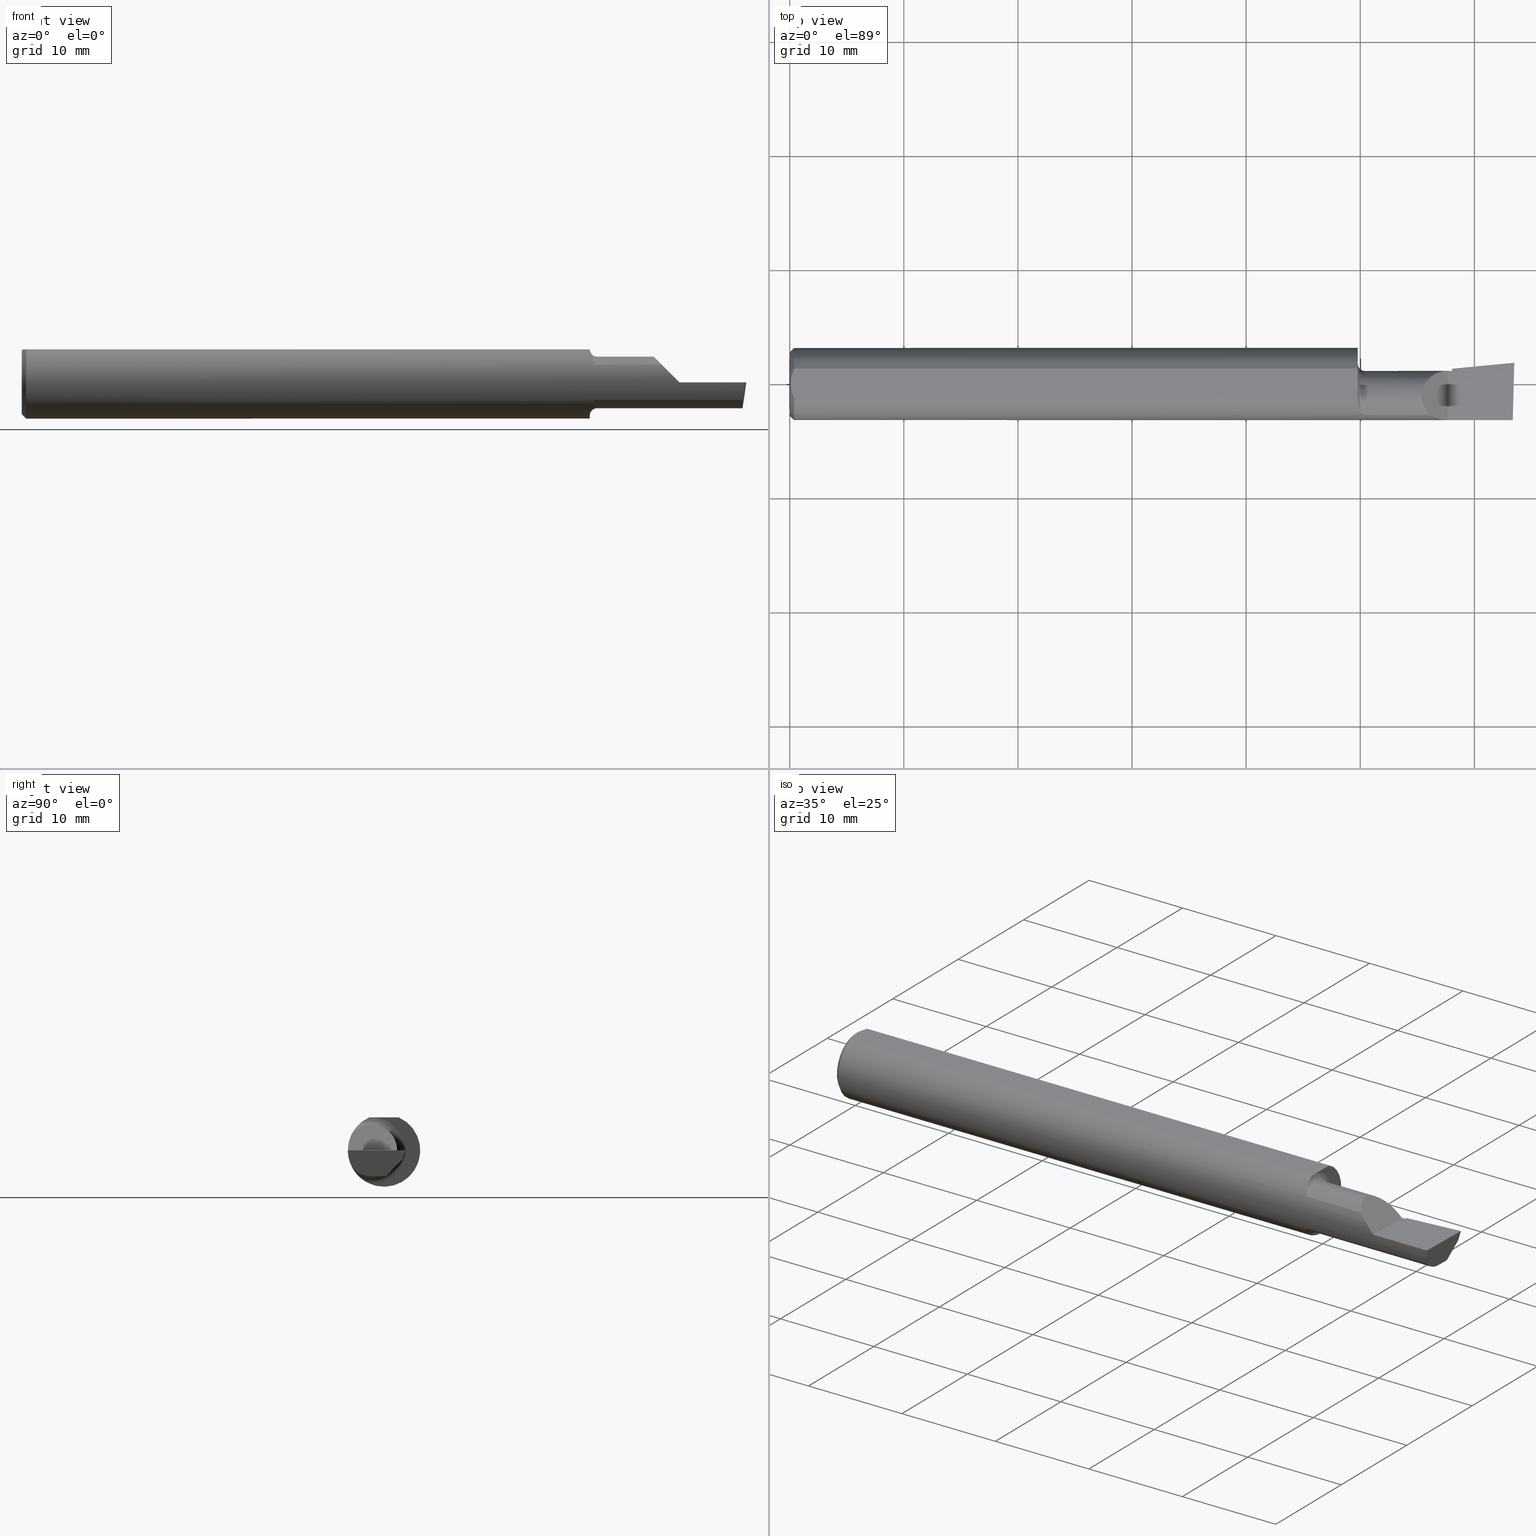
[diagram: canonical four-view strip — front | top / right | iso, engineering-drawing reading convention]
A machine part, canonical four-view strip (front | top / right | iso — engineering-drawing reading convention). The complete STEP part file that produces these views, byte-faithful:
ISO-10303-21;
HEADER;
FILE_DESCRIPTION (( 'STEP AP214' ),
    '1' );
FILE_NAME ('B200500.STEP',
    '2019-07-25T18:20:52',
    ( '' ),
    ( '' ),
    'SwSTEP 2.0',
    'SolidWorks 2018',
    '' );
FILE_SCHEMA (( 'AUTOMOTIVE_DESIGN' ));
ENDSEC;

DATA;
#1 = CARTESIAN_POINT ( 'NONE',  ( 2.289131370391418674, -0.006166688875842945075, -0.08914999999999999314 ) ) ;
#2 = ORIENTED_EDGE ( 'NONE', *, *, #433, .F. ) ;
#3 = CARTESIAN_POINT ( 'NONE',  ( 2.487716879513912627, -0.1088159090909091575, -0.06120964326573871683 ) ) ;
#4 = EDGE_LOOP ( 'NONE', ( #155, #424, #476, #447, #191 ) ) ;
#5 = EDGE_CURVE ( 'NONE', #214, #277, #220, .T. ) ;
#6 = CARTESIAN_POINT ( 'NONE',  ( 1.985000000000000098, -0.04399999999999999745, 0.08914999999999995151 ) ) ;
#7 = CARTESIAN_POINT ( 'NONE',  ( 1.960000097795984608, -0.05124158467435454417, 0.1138500000000000345 ) ) ;
#8 = EDGE_CURVE ( 'NONE', #484, #634, #394, .T. ) ;
#9 = DIRECTION ( 'NONE',  ( 0.0000000000000000000, 0.0000000000000000000, 1.000000000000000000 ) ) ;
#10 = ORIENTED_EDGE ( 'NONE', *, *, #649, .F. ) ;
#11 = ORIENTED_EDGE ( 'NONE', *, *, #211, .T. ) ;
#12 = FACE_OUTER_BOUND ( 'NONE', #114, .T. ) ;
#13 = CARTESIAN_POINT ( 'NONE',  ( 1.985000000000000098, -0.04399999999999999745, 0.0000000000000000000 ) ) ;
#14 = ADVANCED_FACE ( 'NONE', ( #250 ), #196, .T. ) ;
#15 = EDGE_CURVE ( 'NONE', #197, #441, #167, .T. ) ;
#16 = DIRECTION ( 'NONE',  ( 0.0000000000000000000, 0.0000000000000000000, 1.000000000000000000 ) ) ;
#17 = ADVANCED_FACE ( 'NONE', ( #293 ), #566, .F. ) ;
#18 = ORIENTED_EDGE ( 'NONE', *, *, #462, .T. ) ;
#19 = CARTESIAN_POINT ( 'NONE',  ( 2.494815187529301426, -0.1248500000000000304, -6.615452481474715797E-17 ) ) ;
#20 = ORIENTED_EDGE ( 'NONE', *, *, #317, .F. ) ;
#21 = CIRCLE ( 'NONE', #371, 0.1141499999999999598 ) ;
#22 = EDGE_CURVE ( 'NONE', #323, #678, #215, .T. ) ;
#23 = CARTESIAN_POINT ( 'NONE',  ( 1.960001800064804511, -0.04399999999999999745, 0.1138500000000000345 ) ) ;
#24 = EDGE_CURVE ( 'NONE', #72, #584, #338, .T. ) ;
#25 = CARTESIAN_POINT ( 'NONE',  ( 2.270000000000000018, -0.2500000000000000555, 2.816687638038912303E-17 ) ) ;
#26 = AXIS2_PLACEMENT_3D ( 'NONE', #186, #459, #55 ) ;
#27 = VECTOR ( 'NONE', #718, 39.37007874015748143 ) ;
#28 = ORIENTED_EDGE ( 'NONE', *, *, #473, .T. ) ;
#29 = CIRCLE ( 'NONE', #251, 0.09644785463752904298 ) ;
#30 = DIRECTION ( 'NONE',  ( 0.0000000000000000000, 0.0000000000000000000, -1.000000000000000000 ) ) ;
#31 = LINE ( 'NONE', #41, #320 ) ;
#32 = ORIENTED_EDGE ( 'NONE', *, *, #76, .F. ) ;
#33 = ORIENTED_EDGE ( 'NONE', *, *, #8, .T. ) ;
#34 = CARTESIAN_POINT ( 'NONE',  ( 2.289728664559030236, -0.01236982598015578041, -0.08914999999999999314 ) ) ;
#35 = LINE ( 'NONE', #77, #688 ) ;
#36 = LINE ( 'NONE', #618, #182 ) ;
#37 = B_SPLINE_CURVE_WITH_KNOTS ( 'NONE', 3,
 ( #599, #324, #480, #531, #265, #326, #372, #655, #144, #647, #149, #436 ),
 .UNSPECIFIED., .F., .F.,
 ( 4, 2, 2, 2, 2, 4 ),
 ( 1.958506483897801753E-07, 0.0001392669359846166399, 0.0002783380213208434643, 0.0005564801919932976012, 0.001112764533338206092, 0.002225333216028027410 ),
 .UNSPECIFIED. ) ;
#38 = CARTESIAN_POINT ( 'NONE',  ( 0.0000000000000000000, -0.04399999999999999745, 0.08914999999999997926 ) ) ;
#39 = AXIS2_PLACEMENT_3D ( 'NONE', #452, #52, #49 ) ;
#40 = CARTESIAN_POINT ( 'NONE',  ( 0.0000000000000000000, -0.04399999999999999745, 0.0000000000000000000 ) ) ;
#41 = CARTESIAN_POINT ( 'NONE',  ( 2.491543817870046862, -0.2497785670779702760, -6.474963748791635999E-17 ) ) ;
#42 = CARTESIAN_POINT ( 'NONE',  ( 0.01499999999999999424, 0.0000000000000000000, 0.0000000000000000000 ) ) ;
#43 = B_SPLINE_CURVE_WITH_KNOTS ( 'NONE', 3,
 ( #357, #628, #354, #571, #7 ),
 .UNSPECIFIED., .F., .F.,
 ( 4, 1, 4 ),
 ( 0.001183372309461725802, 0.001275293521162664499, 0.001367214732863603413 ),
 .UNSPECIFIED. ) ;
#44 = LINE ( 'NONE', #216, #470 ) ;
#45 = CARTESIAN_POINT ( 'NONE',  ( 2.285000000000000142, -0.007196927245378875737, -0.08914999999999999314 ) ) ;
#46 = SURFACE_SIDE_STYLE ('',( #256 ) ) ;
#47 = CYLINDRICAL_SURFACE ( 'NONE', #397, 0.08914999999999997926 ) ;
#48 = CARTESIAN_POINT ( 'NONE',  ( 2.487308770579542472, 0.006654974371325365554, -0.08914999999999999314 ) ) ;
#49 = DIRECTION ( 'NONE',  ( 0.0000000000000000000, 0.0000000000000000000, 1.000000000000000000 ) ) ;
#50 = B_SPLINE_CURVE_WITH_KNOTS ( 'NONE', 3,
 ( #122, #233, #346, #411, #131, #518, #524, #419, #198, #636, #695, #575, #247, #139 ),
 .UNSPECIFIED., .F., .F.,
 ( 4, 2, 2, 2, 2, 2, 4 ),
 ( 4.804672186336111182E-07, 0.0005473133578656328617, 0.001094146248512631965, 0.001640979139159630959, 0.001914395584483130890, 0.002051103807144887253, 0.002187812029806642748 ),
 .UNSPECIFIED. ) ;
#51 = DIRECTION ( 'NONE',  ( 0.0000000000000000000, 0.0000000000000000000, -1.000000000000000000 ) ) ;
#52 = DIRECTION ( 'NONE',  ( -1.000000000000000000, -0.0000000000000000000, -0.0000000000000000000 ) ) ;
#53 = EDGE_CURVE ( 'NONE', #387, #214, #674, .T. ) ;
#54 = CYLINDRICAL_SURFACE ( 'NONE', #143, 0.1248500000000000026 ) ;
#55 = DIRECTION ( 'NONE',  ( 0.0000000000000000000, 0.0000000000000000000, -1.000000000000000000 ) ) ;
#56 = ORIENTED_EDGE ( 'NONE', *, *, #445, .T. ) ;
#57 = DIRECTION ( 'NONE',  ( 0.1219104985252882217, 0.0000000000000000000, 0.9925410975618670362 ) ) ;
#58 = CIRCLE ( 'NONE', #662, 0.1098499999999996424 ) ;
#59 = CARTESIAN_POINT ( 'NONE',  ( 2.284439022446592915, 0.04256520776931357886, -0.03200000000000000067 ) ) ;
#60 = CARTESIAN_POINT ( 'NONE',  ( 2.485982323393565174, -0.04399999999999999745, -0.08914999999999999314 ) ) ;
#61 = AXIS2_PLACEMENT_3D ( 'NONE', #490, #661, #275 ) ;
#62 = DIRECTION ( 'NONE',  ( -0.0000000000000000000, 1.000000000000000000, 1.224646799147353207E-16 ) ) ;
#63 = CARTESIAN_POINT ( 'NONE',  ( 0.0000000000000000000, 0.0000000000000000000, 0.0000000000000000000 ) ) ;
#64 = VERTEX_POINT ( 'NONE', #597 ) ;
#65 = ORIENTED_EDGE ( 'NONE', *, *, #528, .T. ) ;
#66 = ORIENTED_EDGE ( 'NONE', *, *, #368, .F. ) ;
#67 = PRESENTATION_LAYER_ASSIGNMENT (  '', '', ( #319 ) ) ;
#68 = VECTOR ( 'NONE', #613, 39.37007874015748854 ) ;
#69 = CARTESIAN_POINT ( 'NONE',  ( 2.285000000000000142, 0.05244785463752904553, 0.0000000000000000000 ) ) ;
#70 = DIRECTION ( 'NONE',  ( 1.000000000000000000, 0.0000000000000000000, 0.0000000000000000000 ) ) ;
#71 = ORIENTED_EDGE ( 'NONE', *, *, #344, .F. ) ;
#72 = VERTEX_POINT ( 'NONE', #19 ) ;
#73 = EDGE_CURVE ( 'NONE', #686, #331, #595, .T. ) ;
#74 = LINE ( 'NONE', #118, #170 ) ;
#75 = VECTOR ( 'NONE', #109, 39.37007874015748143 ) ;
#76 = EDGE_CURVE ( 'NONE', #136, #64, #177, .T. ) ;
#77 = CARTESIAN_POINT ( 'NONE',  ( 2.485991928762870451, -0.04363318574524892302, -0.08914999999999999314 ) ) ;
#78 = AXIS2_PLACEMENT_3D ( 'NONE', #303, #366, #9 ) ;
#79 =( BOUNDED_CURVE ( )  B_SPLINE_CURVE ( 3, ( #165, #545, #449, #669 ),
 .UNSPECIFIED., .F., .T. ) 
 B_SPLINE_CURVE_WITH_KNOTS ( ( 4, 4 ),
 ( 4.712388980384689674, 5.224783288303640916 ),
 .UNSPECIFIED. ) 
 CURVE ( )  GEOMETRIC_REPRESENTATION_ITEM ( )  RATIONAL_B_SPLINE_CURVE ( ( 1.000000000000000000, 0.9782404171696013062, 0.9782404171696013062, 1.000000000000000000 ) ) 
 REPRESENTATION_ITEM ( '' )  );
#80 = DIRECTION ( 'NONE',  ( -0.7071067811865507924, 0.0000000000000000000, 0.7071067811865443531 ) ) ;
#81 = EDGE_LOOP ( 'NONE', ( #622, #360, #725, #687, #498, #659 ) ) ;
#82 = FILL_AREA_STYLE_COLOUR ( '', #416 ) ;
#83 = EDGE_CURVE ( 'NONE', #456, #152, #37, .T. ) ;
#84 = ORIENTED_EDGE ( 'NONE', *, *, #137, .F. ) ;
#85 = CARTESIAN_POINT ( 'NONE',  ( 2.284439022446592915, 0.04256520776931357886, -0.03200000000000000067 ) ) ;
#86 = LINE ( 'NONE', #336, #95 ) ;
#87 = AXIS2_PLACEMENT_3D ( 'NONE', #201, #585, #259 ) ;
#88 = ADVANCED_FACE ( 'NONE', ( #347 ), #657, .F. ) ;
#89 =( NAMED_UNIT ( * ) PLANE_ANGLE_UNIT ( ) SI_UNIT ( $, .RADIAN. ) );
#90 = ADVANCED_FACE ( 'NONE', ( #140 ), #318, .F. ) ;
#91 = LINE ( 'NONE', #38, #205 ) ;
#92 = ORIENTED_EDGE ( 'NONE', *, *, #544, .T. ) ;
#93 = EDGE_LOOP ( 'NONE', ( #475, #223, #598, #533 ) ) ;
#94 = EDGE_CURVE ( 'NONE', #709, #505, #712, .T. ) ;
#95 = VECTOR ( 'NONE', #399, 39.37007874015748143 ) ;
#96 = PLANE ( 'NONE',  #61 ) ;
#97 = CARTESIAN_POINT ( 'NONE',  ( 2.489748215127380870, -0.1193864177600010845, -0.04241784104289512969 ) ) ;
#98 = CARTESIAN_POINT ( 'NONE',  ( 0.0000000000000000000, 1.437123018799416669E-17, 0.1098499999999996424 ) ) ;
#99 = AXIS2_PLACEMENT_3D ( 'NONE', #292, #610, #179 ) ;
#100 = B_SPLINE_CURVE_WITH_KNOTS ( 'NONE', 3,
 ( #460, #504, #239, #111, #283, #337 ),
 .UNSPECIFIED., .F., .F.,
 ( 4, 2, 4 ),
 ( 0.002303251115488625690, 0.002969128157203607035, 0.003635005198918588379 ),
 .UNSPECIFIED. ) ;
#101 = DIRECTION ( 'NONE',  ( 0.0000000000000000000, 0.0000000000000000000, 1.000000000000000000 ) ) ;
#102 = ORIENTED_EDGE ( 'NONE', *, *, #462, .F. ) ;
#103 = CARTESIAN_POINT ( 'NONE',  ( 2.500000000000000000, -0.04399999999999999745, -0.08914999999999999314 ) ) ;
#104 = ORIENTED_EDGE ( 'NONE', *, *, #148, .F. ) ;
#105 = ORIENTED_EDGE ( 'NONE', *, *, #317, .T. ) ;
#106 = FACE_OUTER_BOUND ( 'NONE', #81, .T. ) ;
#107 = EDGE_CURVE ( 'NONE', #277, #349, #91, .T. ) ;
#108 =( LENGTH_UNIT ( ) NAMED_UNIT ( * ) SI_UNIT ( $, .METRE. ) );
#109 = DIRECTION ( 'NONE',  ( 0.7071067811865390240, 8.659560562355036396E-17, 0.7071067811865560104 ) ) ;
#110 = MECHANICAL_DESIGN_GEOMETRIC_PRESENTATION_REPRESENTATION (  '', ( #319 ), #190 ) ;
#111 = CARTESIAN_POINT ( 'NONE',  ( 0.008876515511621064711, 0.03469031959364226453, 0.1138500000000000206 ) ) ;
#112 = FACE_OUTER_BOUND ( 'NONE', #558, .T. ) ;
#113 = CARTESIAN_POINT ( 'NONE',  ( 2.285000000000000142, 0.03673923312418244519, -0.05275760512666258228 ) ) ;
#114 = EDGE_LOOP ( 'NONE', ( #660, #134, #225, #65, #84, #32, #28 ) ) ;
#115 = LINE ( 'NONE', #431, #458 ) ;
#116 = CARTESIAN_POINT ( 'NONE',  ( 1.960000097795984608, -0.05124158467435454417, 0.1138500000000000345 ) ) ;
#117 = EDGE_CURVE ( 'NONE', #667, #456, #213, .T. ) ;
#118 = CARTESIAN_POINT ( 'NONE',  ( 0.0000000000000000000, -0.05124158467494919350, 0.1138500000000000345 ) ) ;
#119 = CARTESIAN_POINT ( 'NONE',  ( 2.285000000000000142, -0.04399999999999999745, 0.0000000000000000000 ) ) ;
#120 = CARTESIAN_POINT ( 'NONE',  ( 2.285000000000000142, 0.04261922376399131240, -0.03200000000000000761 ) ) ;
#121 = VECTOR ( 'NONE', #343, 39.37007874015748143 ) ;
#122 = CARTESIAN_POINT ( 'NONE',  ( 1.960000097795984608, -0.05124158467435454417, 0.1138500000000000345 ) ) ;
#123 = ORIENTED_EDGE ( 'NONE', *, *, #696, .F. ) ;
#124 = VERTEX_POINT ( 'NONE', #444 ) ;
#125 = DIRECTION ( 'NONE',  ( 0.9953961983671801850, 0.09584575252020945124, -3.364218507212918783E-14 ) ) ;
#126 = ORIENTED_EDGE ( 'NONE', *, *, #433, .T. ) ;
#127 = CYLINDRICAL_SURFACE ( 'NONE', #546, 0.08914999999999997926 ) ;
#128 = CARTESIAN_POINT ( 'NONE',  ( 2.270000000000000018, -0.1248500000000000165, 2.816687638038912303E-17 ) ) ;
#129 = LINE ( 'NONE', #245, #246 ) ;
#130 = CARTESIAN_POINT ( 'NONE',  ( 2.485942244485980002, -0.09173194857106677091, -0.07930013314426070936 ) ) ;
#131 = CARTESIAN_POINT ( 'NONE',  ( 1.963123628621459504, -0.08156933505673470697, 0.09478144068379323883 ) ) ;
#132 = VERTEX_POINT ( 'NONE', #548 ) ;
#133 = EDGE_CURVE ( 'NONE', #601, #709, #189, .T. ) ;
#134 = ORIENTED_EDGE ( 'NONE', *, *, #560, .F. ) ;
#135 = DIRECTION ( 'NONE',  ( -0.0000000000000000000, 0.0000000000000000000, 1.000000000000000000 ) ) ;
#136 = VERTEX_POINT ( 'NONE', #664 ) ;
#137 = EDGE_CURVE ( 'NONE', #64, #244, #269, .T. ) ;
#138 = CARTESIAN_POINT ( 'NONE',  ( 0.01499999999999999424, 0.0000000000000000000, 0.0000000000000000000 ) ) ;
#139 = CARTESIAN_POINT ( 'NONE',  ( 1.985000000000000098, -0.1088159090909094073, 0.06120964326573843234 ) ) ;
#140 = FACE_OUTER_BOUND ( 'NONE', #4, .T. ) ;
#141 = ORIENTED_EDGE ( 'NONE', *, *, #94, .F. ) ;
#142 = ORIENTED_EDGE ( 'NONE', *, *, #107, .F. ) ;
#143 = AXIS2_PLACEMENT_3D ( 'NONE', #332, #602, #101 ) ;
#144 = CARTESIAN_POINT ( 'NONE',  ( 1.966341859756229216, -0.09164079654472229164, -0.08508064213884949933 ) ) ;
#145 = EDGE_LOOP ( 'NONE', ( #295, #507, #322, #142, #693, #522 ) ) ;
#146 = APPLICATION_CONTEXT ( 'automotive_design' ) ;
#147 = LINE ( 'NONE', #401, #75 ) ;
#148 = EDGE_CURVE ( 'NONE', #611, #72, #379, .T. ) ;
#149 = CARTESIAN_POINT ( 'NONE',  ( 1.959999999999999520, -0.06435233443826804400, -0.1079743783864397788 ) ) ;
#150 = ADVANCED_FACE ( 'NONE', ( #359 ), #711, .F. ) ;
#151 = MECHANICAL_DESIGN_GEOMETRIC_PRESENTATION_REPRESENTATION (  '', ( #178 ), #356 ) ;
#152 = VERTEX_POINT ( 'NONE', #157 ) ;
#153 = CARTESIAN_POINT ( 'NONE',  ( 1.985000000000000098, -0.04399999999999997663, -0.08914999999999995151 ) ) ;
#154 = ORIENTED_EDGE ( 'NONE', *, *, #630, .T. ) ;
#155 = ORIENTED_EDGE ( 'NONE', *, *, #520, .T. ) ;
#156 = ORIENTED_EDGE ( 'NONE', *, *, #171, .F. ) ;
#157 = CARTESIAN_POINT ( 'NONE',  ( 1.959999999999999964, -0.05106022727272737510, -0.1139314517192571846 ) ) ;
#158 = ORIENTED_EDGE ( 'NONE', *, *, #188, .T. ) ;
#159 = EDGE_CURVE ( 'NONE', #442, #289, #44, .T. ) ;
#160 = CARTESIAN_POINT ( 'NONE',  ( 2.287426487320435076, 0.01153919879152676478, -0.08145767591332998825 ) ) ;
#161 = LENGTH_MEASURE_WITH_UNIT ( LENGTH_MEASURE( 0.02539999999999999897 ), #108 );
#162 = DIRECTION ( 'NONE',  ( -0.1240019227989403172, -0.3022330132596650620, -0.9451342385281302771 ) ) ;
#163 = DIMENSIONAL_EXPONENTS ( 1.000000000000000000, 0.0000000000000000000, 0.0000000000000000000, 0.0000000000000000000, 0.0000000000000000000, 0.0000000000000000000, 0.0000000000000000000 ) ;
#164 = CARTESIAN_POINT ( 'NONE',  ( 0.01499999999999999424, 0.0000000000000000000, -0.1248500000000000026 ) ) ;
#165 = CARTESIAN_POINT ( 'NONE',  ( 2.270000000000000018, -0.1248500000000000165, 2.816687638038912303E-17 ) ) ;
#166 = PLANE ( 'NONE',  #627 ) ;
#167 = LINE ( 'NONE', #639, #454 ) ;
#168 = SURFACE_STYLE_USAGE ( .BOTH. , #46 ) ;
#169 = EDGE_LOOP ( 'NONE', ( #367, #497, #556, #430, #635 ) ) ;
#170 = VECTOR ( 'NONE', #469, 39.37007874015748143 ) ;
#171 = EDGE_CURVE ( 'NONE', #584, #214, #79, .T. ) ;
#172 = CARTESIAN_POINT ( 'NONE',  ( 2.284999999999997478, 0.03673923312418989062, -0.03806087642518373587 ) ) ;
#173 = DIRECTION ( 'NONE',  ( 0.0000000000000000000, 0.0000000000000000000, 1.000000000000000000 ) ) ;
#174 = AXIS2_PLACEMENT_3D ( 'NONE', #565, #358, #467 ) ;
#175 = DIRECTION ( 'NONE',  ( -1.000000000000000000, -0.0000000000000000000, -0.0000000000000000000 ) ) ;
#176 = EDGE_CURVE ( 'NONE', #72, #709, #31, .T. ) ;
#177 = CIRCLE ( 'NONE', #645, 0.08914999999999999314 ) ;
#178 = STYLED_ITEM ( 'NONE', ( #681 ), #388 ) ;
#179 = DIRECTION ( 'NONE',  ( 0.0000000000000000000, 0.0000000000000000000, 1.000000000000000000 ) ) ;
#180 = ORIENTED_EDGE ( 'NONE', *, *, #528, .F. ) ;
#181 = ORIENTED_EDGE ( 'NONE', *, *, #696, .T. ) ;
#182 = VECTOR ( 'NONE', #355, 39.37007874015748854 ) ;
#183 = FILL_AREA_STYLE ('',( #466 ) ) ;
#184 = VECTOR ( 'NONE', #278, 39.37007874015748854 ) ;
#185 = AXIS2_PLACEMENT_3D ( 'NONE', #559, #175, #173 ) ;
#186 = CARTESIAN_POINT ( 'NONE',  ( 1.959999999999999964, 0.07014999999999996239, 0.0000000000000000000 ) ) ;
#187 = PLANE ( 'NONE',  #228 ) ;
#188 = EDGE_CURVE ( 'NONE', #152, #234, #461, .T. ) ;
#189 = LINE ( 'NONE', #710, #642 ) ;
#190 =( GEOMETRIC_REPRESENTATION_CONTEXT ( 3 ) GLOBAL_UNCERTAINTY_ASSIGNED_CONTEXT ( ( #539 ) ) GLOBAL_UNIT_ASSIGNED_CONTEXT ( ( #315, #89, #706 ) ) REPRESENTATION_CONTEXT ( 'NONE', 'WORKASPACE' ) );
#191 = ORIENTED_EDGE ( 'NONE', *, *, #560, .T. ) ;
#192 = EDGE_LOOP ( 'NONE', ( #408, #542, #479, #385 ) ) ;
#193 = CARTESIAN_POINT ( 'NONE',  ( 0.01168016970778672399, -0.04315282601121772643, 0.1138500000000000206 ) ) ;
#194 = VECTOR ( 'NONE', #407, 39.37007874015748143 ) ;
#195 = ADVANCED_FACE ( 'NONE', ( #304 ), #96, .F. ) ;
#196 = CONICAL_SURFACE ( 'NONE', #273, 0.1248500000000000026, 0.7853981633974602694 ) ;
#197 = VERTEX_POINT ( 'NONE', #34 ) ;
#198 = CARTESIAN_POINT ( 'NONE',  ( 1.974298474000476977, -0.1041086701287579075, 0.06897617952042765788 ) ) ;
#199 = ADVANCED_FACE ( 'NONE', ( #439 ), #54, .T. ) ;
#200 = CIRCLE ( 'NONE', #333, 0.1248500000000000026 ) ;
#201 = CARTESIAN_POINT ( 'NONE',  ( 0.0000000000000000000, 0.0000000000000000000, 0.0000000000000000000 ) ) ;
#202 = PRODUCT_CONTEXT ( 'NONE', #146, 'mechanical' ) ;
#203 = AXIS2_PLACEMENT_3D ( 'NONE', #69, #472, #135 ) ;
#204 = CARTESIAN_POINT ( 'NONE',  ( 1.960001800064805177, -0.04262160478489881305, 0.1138500000000000761 ) ) ;
#205 = VECTOR ( 'NONE', #221, 39.37007874015748143 ) ;
#206 = ORIENTED_EDGE ( 'NONE', *, *, #677, .F. ) ;
#207 = DIRECTION ( 'NONE',  ( 0.0000000000000000000, -0.6963153109074923242, -0.7177360153954949196 ) ) ;
#208 = ORIENTED_EDGE ( 'NONE', *, *, #713, .F. ) ;
#209 = FACE_OUTER_BOUND ( 'NONE', #93, .T. ) ;
#210 = CARTESIAN_POINT ( 'NONE',  ( 1.960001800064804511, -0.04399999999999999745, 0.1138500000000000345 ) ) ;
#211 = EDGE_CURVE ( 'NONE', #323, #312, #620, .T. ) ;
#212 = DIRECTION ( 'NONE',  ( 0.0000000000000000000, 0.0000000000000000000, 1.000000000000000000 ) ) ;
#213 = CIRCLE ( 'NONE', #236, 0.08914999999999995151 ) ;
#214 = VERTEX_POINT ( 'NONE', #680 ) ;
#215 = B_SPLINE_CURVE_WITH_KNOTS ( 'NONE', 3,
 ( #587, #705, #482, #204, #210 ),
 .UNSPECIFIED., .F., .F.,
 ( 4, 1, 4 ),
 ( 0.0009734136918183535934, 0.001078393000640039644, 0.001183372309461725802 ),
 .UNSPECIFIED. ) ;
#216 = CARTESIAN_POINT ( 'NONE',  ( 2.285000000000000142, 0.03673923312420349779, 5.513779570648136315E-15 ) ) ;
#217 = PRESENTATION_LAYER_ASSIGNMENT (  '', '', ( #178 ) ) ;
#218 = PRODUCT_DEFINITION_SHAPE ( 'NONE', 'NONE',  #633 ) ;
#219 = AXIS2_PLACEMENT_3D ( 'NONE', #231, #552, #619 ) ;
#220 =( BOUNDED_CURVE ( )  B_SPLINE_CURVE ( 3, ( #311, #253, #370, #581 ),
 .UNSPECIFIED., .F., .T. ) 
 B_SPLINE_CURVE_WITH_KNOTS ( ( 4, 4 ),
 ( 5.469179596148854294, 6.283185307179586232 ),
 .UNSPECIFIED. ) 
 CURVE ( )  GEOMETRIC_REPRESENTATION_ITEM ( )  RATIONAL_B_SPLINE_CURVE ( ( 1.000000000000000000, 0.9455409277260484746, 0.9455409277260484746, 1.000000000000000000 ) ) 
 REPRESENTATION_ITEM ( '' )  );
#221 = DIRECTION ( 'NONE',  ( -1.000000000000000000, -0.0000000000000000000, -0.0000000000000000000 ) ) ;
#222 = CARTESIAN_POINT ( 'NONE',  ( 2.270000000000000018, -0.2500000000000000555, 2.816687638038912303E-17 ) ) ;
#223 = ORIENTED_EDGE ( 'NONE', *, *, #94, .T. ) ;
#224 = CARTESIAN_POINT ( 'NONE',  ( 2.495889740814595026, 0.06313196164346812633, -0.03132811651357114008 ) ) ;
#225 = ORIENTED_EDGE ( 'NONE', *, *, #159, .T. ) ;
#226 = EDGE_CURVE ( 'NONE', #634, #686, #100, .T. ) ;
#227 = LINE ( 'NONE', #222, #335 ) ;
#228 = AXIS2_PLACEMENT_3D ( 'NONE', #301, #125, #513 ) ;
#229 = DIRECTION ( 'NONE',  ( -0.0000000000000000000, 1.000000000000000000, -0.0000000000000000000 ) ) ;
#230 = CARTESIAN_POINT ( 'NONE',  ( 4.111069666048746882E-31, 0.04514999999999996100, 9.802154982235641300E-16 ) ) ;
#231 = CARTESIAN_POINT ( 'NONE',  ( 1.985000000000000098, -0.04399999999999999745, 0.1141499999999999598 ) ) ;
#232 = VECTOR ( 'NONE', #162, 39.37007874015748854 ) ;
#233 = CARTESIAN_POINT ( 'NONE',  ( 1.960007259122698242, -0.05787968516888347681, 0.1108623250897052548 ) ) ;
#234 = VERTEX_POINT ( 'NONE', #404 ) ;
#235 = CARTESIAN_POINT ( 'NONE',  ( 2.285000000000000142, -0.007196927245378875737, -0.08914999999999999314 ) ) ;
#236 = AXIS2_PLACEMENT_3D ( 'NONE', #607, #606, #280 ) ;
#237 = DIRECTION ( 'NONE',  ( 0.0000000000000000000, 0.0000000000000000000, 1.000000000000000000 ) ) ;
#238 = LINE ( 'NONE', #508, #352 ) ;
#239 = CARTESIAN_POINT ( 'NONE',  ( 0.005053359673950995161, 0.01761291720128071656, 0.1138500000000000484 ) ) ;
#240 = CARTESIAN_POINT ( 'NONE',  ( 0.01499999999999999424, 0.0000000000000000000, -0.1248500000000000026 ) ) ;
#241 = EDGE_CURVE ( 'NONE', #387, #349, #421, .T. ) ;
#242 = ORIENTED_EDGE ( 'NONE', *, *, #596, .F. ) ;
#243 = DIRECTION ( 'NONE',  ( -1.000000000000000000, -0.0000000000000000000, -0.0000000000000000000 ) ) ;
#244 = VERTEX_POINT ( 'NONE', #45 ) ;
#245 = CARTESIAN_POINT ( 'NONE',  ( 1.959999999999999964, 0.1748500000000000609, 0.1138500000000000068 ) ) ;
#246 = VECTOR ( 'NONE', #682, 39.37007874015748143 ) ;
#247 = CARTESIAN_POINT ( 'NONE',  ( 1.983151621368536288, -0.1088159090914120330, 0.06120964326484491791 ) ) ;
#248 = EDGE_CURVE ( 'NONE', #678, #349, #576, .T. ) ;
#249 = CARTESIAN_POINT ( 'NONE',  ( 0.01499999999999999424, 0.0000000000000000000, 0.0000000000000000000 ) ) ;
#250 = FACE_OUTER_BOUND ( 'NONE', #362, .T. ) ;
#251 = AXIS2_PLACEMENT_3D ( 'NONE', #119, #626, #679 ) ;
#252 = ORIENTED_EDGE ( 'NONE', *, *, #73, .T. ) ;
#253 = CARTESIAN_POINT ( 'NONE',  ( 2.190699866855738698, -0.09173194857106663214, 0.07930013314426077875 ) ) ;
#254 = CARTESIAN_POINT ( 'NONE',  ( 2.284439022446592915, 0.04256520776931357886, -0.03200000000000000067 ) ) ;
#255 = ADVANCED_BREP_SHAPE_REPRESENTATION ( 'B200500', ( #388, #87 ), #697 ) ;
#256 = SURFACE_STYLE_FILL_AREA ( #183 ) ;
#257 = AXIS2_PLACEMENT_3D ( 'NONE', #512, #573, #418 ) ;
#258 = CARTESIAN_POINT ( 'NONE',  ( 0.004000000000000278506, 1.406179932551309785E-17, 0.1138500000000000345 ) ) ;
#259 = DIRECTION ( 'NONE',  ( 1.000000000000000000, 0.0000000000000000000, 0.0000000000000000000 ) ) ;
#260 = CONICAL_SURFACE ( 'NONE', #481, 0.09644785463752904298, 0.09599310885968871665 ) ;
#261 = ORIENTED_EDGE ( 'NONE', *, *, #302, .F. ) ;
#262 = APPLICATION_CONTEXT ( 'automotive_design' ) ;
#263 = EDGE_LOOP ( 'NONE', ( #364, #208, #376, #141, #271, #104 ) ) ;
#264 = VECTOR ( 'NONE', #554, 39.37007874015748143 ) ;
#265 = CARTESIAN_POINT ( 'NONE',  ( 1.977418472017428597, -0.1064706388662829128, -0.06522095769404975818 ) ) ;
#266 = DIRECTION ( 'NONE',  ( -1.000000000000000000, -0.0000000000000000000, -0.0000000000000000000 ) ) ;
#267 = ADVANCED_FACE ( 'NONE', ( #112 ), #260, .T. ) ;
#268 = DIRECTION ( 'NONE',  ( -1.000000000000000000, -0.0000000000000000000, -0.0000000000000000000 ) ) ;
#269 = LINE ( 'NONE', #272, #27 ) ;
#270 = DIRECTION ( 'NONE',  ( 0.0000000000000000000, 0.0000000000000000000, 1.000000000000000000 ) ) ;
#271 = ORIENTED_EDGE ( 'NONE', *, *, #176, .F. ) ;
#272 = CARTESIAN_POINT ( 'NONE',  ( 2.285000000000000142, -0.04399999999999999745, -0.08914999999999999314 ) ) ;
#273 = AXIS2_PLACEMENT_3D ( 'NONE', #138, #638, #309 ) ;
#274 = DIRECTION ( 'NONE',  ( 1.000000000000000000, 0.0000000000000000000, 0.0000000000000000000 ) ) ;
#275 = DIRECTION ( 'NONE',  ( 0.0000000000000000000, 1.000000000000000000, -1.464745492742491612E-16 ) ) ;
#276 =( LENGTH_UNIT ( ) NAMED_UNIT ( * ) SI_UNIT ( $, .METRE. ) );
#277 = VERTEX_POINT ( 'NONE', #500 ) ;
#278 = DIRECTION ( 'NONE',  ( 0.9953961983671800740, 0.09584575252021032554, 1.093478026937437971E-17 ) ) ;
#279 = ORIENTED_EDGE ( 'NONE', *, *, #24, .T. ) ;
#280 = DIRECTION ( 'NONE',  ( 0.0000000000000000000, 0.0000000000000000000, 1.000000000000000000 ) ) ;
#281 = CARTESIAN_POINT ( 'NONE',  ( 2.492166948426750128, -0.1248499999999999888, -0.02156078579982241214 ) ) ;
#282 = DIRECTION ( 'NONE',  ( 1.000000000000000000, 0.0000000000000000000, 0.0000000000000000000 ) ) ;
#283 = CARTESIAN_POINT ( 'NONE',  ( 0.01166851468367537115, 0.04312442857252158507, 0.1138500000000000345 ) ) ;
#284 = DIMENSIONAL_EXPONENTS ( 1.000000000000000000, 0.0000000000000000000, 0.0000000000000000000, 0.0000000000000000000, 0.0000000000000000000, 0.0000000000000000000, 0.0000000000000000000 ) ;
#285 = CARTESIAN_POINT ( 'NONE',  ( 2.286008923699899054, 0.02626115987715827924, -0.06897064857156001705 ) ) ;
#286 = ORIENTED_EDGE ( 'NONE', *, *, #596, .T. ) ;
#287 = CARTESIAN_POINT ( 'NONE',  ( 2.217777139085560734, 0.04514999999999998181, 0.05222286091443858330 ) ) ;
#288 = ORIENTED_EDGE ( 'NONE', *, *, #188, .F. ) ;
#289 = VERTEX_POINT ( 'NONE', #113 ) ;
#290 = CARTESIAN_POINT ( 'NONE',  ( 2.286376142476870932, -0.006849672022903362592, -0.08914999999999999314 ) ) ;
#291 = EDGE_CURVE ( 'NONE', #64, #667, #413, .T. ) ;
#292 = CARTESIAN_POINT ( 'NONE',  ( 1.959999999999999964, -0.04399999999999999745, 0.0000000000000000000 ) ) ;
#293 = FACE_OUTER_BOUND ( 'NONE', #169, .T. ) ;
#294 = CARTESIAN_POINT ( 'NONE',  ( 0.0000000000000000000, -0.04399999999999999745, 0.0000000000000000000 ) ) ;
#295 = ORIENTED_EDGE ( 'NONE', *, *, #76, .T. ) ;
#296 = ORIENTED_EDGE ( 'NONE', *, *, #117, .T. ) ;
#297 = CARTESIAN_POINT ( 'NONE',  ( 2.270000000000000018, 0.04514999999999989161, 2.816687638038912303E-17 ) ) ;
#298 = EDGE_LOOP ( 'NONE', ( #154, #378, #405, #658 ) ) ;
#299 = DIRECTION ( 'NONE',  ( 0.0000000000000000000, 0.0000000000000000000, 1.000000000000000000 ) ) ;
#300 = CARTESIAN_POINT ( 'NONE',  ( 2.285000000000000142, 0.03673923312418244519, -0.05275760512666258228 ) ) ;
#301 = CARTESIAN_POINT ( 'NONE',  ( 2.289068894429394430, -0.005517851202293823885, -0.1900000000000000577 ) ) ;
#302 = EDGE_CURVE ( 'NONE', #244, #441, #451, .T. ) ;
#303 = CARTESIAN_POINT ( 'NONE',  ( 1.985000000000000098, -0.04399999999999999745, 0.0000000000000000000 ) ) ;
#304 = FACE_OUTER_BOUND ( 'NONE', #612, .T. ) ;
#305 = VERTEX_POINT ( 'NONE', #116 ) ;
#306 = CARTESIAN_POINT ( 'NONE',  ( 2.135000000000000231, -0.1088159090909091575, -0.06120964326573871683 ) ) ;
#307 = VERTEX_POINT ( 'NONE', #48 ) ;
#308 = LINE ( 'NONE', #306, #525 ) ;
#309 = DIRECTION ( 'NONE',  ( 0.0000000000000000000, 0.0000000000000000000, -1.000000000000000000 ) ) ;
#310 = DIRECTION ( 'NONE',  ( -0.09584575252020945124, 0.9953961983671801850, 8.497722210657548999E-17 ) ) ;
#311 = CARTESIAN_POINT ( 'NONE',  ( 2.208790356734260829, -0.1088159090909090465, 0.06120964326573886255 ) ) ;
#312 = VERTEX_POINT ( 'NONE', #410 ) ;
#313 = ORIENTED_EDGE ( 'NONE', *, *, #248, .F. ) ;
#314 = CARTESIAN_POINT ( 'NONE',  ( 0.008889541251485982148, -0.03475029298915140868, 0.1138500000000000484 ) ) ;
#315 =( CONVERSION_BASED_UNIT ( 'INCH', #580 ) LENGTH_UNIT ( ) NAMED_UNIT ( #720 ) );
#316 = LINE ( 'NONE', #617, #184 ) ;
#317 = EDGE_CURVE ( 'NONE', #464, #634, #147, .T. ) ;
#318 = PLANE ( 'NONE',  #406 ) ;
#319 = STYLED_ITEM ( 'NONE', ( #400 ), #255 ) ;
#320 = VECTOR ( 'NONE', #389, 39.37007874015748143 ) ;
#321 = ADVANCED_FACE ( 'NONE', ( #509 ), #675, .F. ) ;
#322 = ORIENTED_EDGE ( 'NONE', *, *, #478, .F. ) ;
#323 = VERTEX_POINT ( 'NONE', #623 ) ;
#324 = CARTESIAN_POINT ( 'NONE',  ( 1.983136503623037949, -0.1088159090909093379, -0.06120964326573845316 ) ) ;
#325 = EDGE_CURVE ( 'NONE', #686, #234, #380, .T. ) ;
#326 = CARTESIAN_POINT ( 'NONE',  ( 1.974260533375047144, -0.1040753176265711982, -0.06902783361385356198 ) ) ;
#327 = AXIS2_PLACEMENT_3D ( 'NONE', #629, #62, #299 ) ;
#328 = CARTESIAN_POINT ( 'NONE',  ( 1.959999999999999964, 0.0000000000000000000, 0.0000000000000000000 ) ) ;
#329 = EDGE_CURVE ( 'NONE', #277, #547, #723, .T. ) ;
#330 = ORIENTED_EDGE ( 'NONE', *, *, #83, .T. ) ;
#331 = VERTEX_POINT ( 'NONE', #240 ) ;
#332 = CARTESIAN_POINT ( 'NONE',  ( 0.0000000000000000000, 0.0000000000000000000, 0.0000000000000000000 ) ) ;
#333 = AXIS2_PLACEMENT_3D ( 'NONE', #42, #557, #495 ) ;
#334 = ORIENTED_EDGE ( 'NONE', *, *, #582, .F. ) ;
#335 = VECTOR ( 'NONE', #229, 39.37007874015748143 ) ;
#336 = CARTESIAN_POINT ( 'NONE',  ( 2.285000000000000142, -0.2500000000000000555, 2.187580619199813988E-17 ) ) ;
#337 = CARTESIAN_POINT ( 'NONE',  ( 0.01499999999999999424, 0.05124158467494922820, 0.1138500000000000345 ) ) ;
#338 = LINE ( 'NONE', #487, #429 ) ;
#339 = EDGE_CURVE ( 'NONE', #547, #136, #717, .T. ) ;
#340 = PLANE ( 'NONE',  #608 ) ;
#341 = VERTEX_POINT ( 'NONE', #120 ) ;
#342 = FACE_OUTER_BOUND ( 'NONE', #485, .T. ) ;
#343 = DIRECTION ( 'NONE',  ( -1.000000000000000000, -0.0000000000000000000, -0.0000000000000000000 ) ) ;
#344 = EDGE_CURVE ( 'NONE', #611, #132, #434, .T. ) ;
#345 = DIRECTION ( 'NONE',  ( 0.0000000000000000000, -1.000000000000000000, -8.537024980200821325E-17 ) ) ;
#346 = CARTESIAN_POINT ( 'NONE',  ( 1.960398955714025337, -0.06414339738310573247, 0.1073503907437361876 ) ) ;
#347 = FACE_OUTER_BOUND ( 'NONE', #448, .T. ) ;
#348 = DIRECTION ( 'NONE',  ( 1.000000000000000000, 0.0000000000000000000, 0.0000000000000000000 ) ) ;
#349 = VERTEX_POINT ( 'NONE', #6 ) ;
#350 = CARTESIAN_POINT ( 'NONE',  ( 0.004000000000000278506, 1.406179932551309785E-17, 0.1138500000000000345 ) ) ;
#351 = SHAPE_DEFINITION_REPRESENTATION ( #218, #255 ) ;
#352 = VECTOR ( 'NONE', #463, 39.37007874015748143 ) ;
#353 = DIRECTION ( 'NONE',  ( -1.000000000000000000, -0.0000000000000000000, -0.0000000000000000000 ) ) ;
#354 = CARTESIAN_POINT ( 'NONE',  ( 1.960001294887844914, -0.04762079988799950564, 0.1138500000000000484 ) ) ;
#355 = DIRECTION ( 'NONE',  ( 0.0000000000000000000, 0.6963153109074922131, 0.7177360153954949196 ) ) ;
#356 =( GEOMETRIC_REPRESENTATION_CONTEXT ( 3 ) GLOBAL_UNCERTAINTY_ASSIGNED_CONTEXT ( ( #692 ) ) GLOBAL_UNIT_ASSIGNED_CONTEXT ( ( #457, #666, #393 ) ) REPRESENTATION_CONTEXT ( 'NONE', 'WORKASPACE' ) );
#357 = CARTESIAN_POINT ( 'NONE',  ( 1.960001800064804511, -0.04399999999999999745, 0.1138500000000000345 ) ) ;
#358 = DIRECTION ( 'NONE',  ( -1.000000000000000000, -0.0000000000000000000, -0.0000000000000000000 ) ) ;
#359 = FACE_OUTER_BOUND ( 'NONE', #377, .T. ) ;
#360 = ORIENTED_EDGE ( 'NONE', *, *, #713, .T. ) ;
#361 = CARTESIAN_POINT ( 'NONE',  ( 1.985000000000000098, -0.1088159090909094073, 0.06120964326573843234 ) ) ;
#362 = EDGE_LOOP ( 'NONE', ( #123, #105, #543, #252, #432 ) ) ;
#363 = AXIS2_PLACEMENT_3D ( 'NONE', #707, #703, #212 ) ;
#364 = ORIENTED_EDGE ( 'NONE', *, *, #344, .T. ) ;
#365 = ADVANCED_FACE ( 'NONE', ( #572 ), #187, .T. ) ;
#366 = DIRECTION ( 'NONE',  ( -1.000000000000000000, -0.0000000000000000000, -0.0000000000000000000 ) ) ;
#367 = ORIENTED_EDGE ( 'NONE', *, *, #544, .F. ) ;
#368 = EDGE_CURVE ( 'NONE', #678, #305, #43, .T. ) ;
#369 = LINE ( 'NONE', #254, #550 ) ;
#370 = CARTESIAN_POINT ( 'NONE',  ( 2.180849999999999067, -0.06888227343086716914, 0.08914999999999999314 ) ) ;
#371 = AXIS2_PLACEMENT_3D ( 'NONE', #594, #266, #648 ) ;
#372 = CARTESIAN_POINT ( 'NONE',  ( 1.972652750757541762, -0.1022351105670216975, -0.07173965961731917917 ) ) ;
#373 =( NAMED_UNIT ( * ) PLANE_ANGLE_UNIT ( ) SI_UNIT ( $, .RADIAN. ) );
#374 = DIRECTION ( 'NONE',  ( 1.000000000000000000, 0.0000000000000000000, 0.0000000000000000000 ) ) ;
#375 = CARTESIAN_POINT ( 'NONE',  ( 0.0000000000000000000, 0.0000000000000000000, 0.0000000000000000000 ) ) ;
#376 = ORIENTED_EDGE ( 'NONE', *, *, #488, .F. ) ;
#377 = EDGE_LOOP ( 'NONE', ( #621, #716, #691, #714, #577, #102 ) ) ;
#378 = ORIENTED_EDGE ( 'NONE', *, *, #15, .T. ) ;
#379 =( BOUNDED_CURVE ( )  B_SPLINE_CURVE ( 3, ( #384, #97, #281, #715 ),
 .UNSPECIFIED., .F., .T. ) 
 B_SPLINE_CURVE_WITH_KNOTS ( ( 4, 4 ),
 ( 0.8483525745957760655, 1.360746882514725309 ),
 .UNSPECIFIED. ) 
 CURVE ( )  GEOMETRIC_REPRESENTATION_ITEM ( )  RATIONAL_B_SPLINE_CURVE ( ( 1.000000000000000000, 0.9782404171696015283, 0.9782404171696015283, 1.000000000000000000 ) ) 
 REPRESENTATION_ITEM ( '' )  );
#380 = LINE ( 'NONE', #502, #264 ) ;
#381 = ADVANCED_FACE ( 'NONE', ( #209 ), #574, .F. ) ;
#382 = DIRECTION ( 'NONE',  ( -0.7071067811865443531, 0.0000000000000000000, -0.7071067811865507924 ) ) ;
#383 = EDGE_CURVE ( 'NONE', #234, #323, #129, .T. ) ;
#384 = CARTESIAN_POINT ( 'NONE',  ( 2.487716879513912627, -0.1088159090909091575, -0.06120964326573871683 ) ) ;
#385 = ORIENTED_EDGE ( 'NONE', *, *, #53, .T. ) ;
#386 = EDGE_LOOP ( 'NONE', ( #286, #181 ) ) ;
#387 = VERTEX_POINT ( 'NONE', #361 ) ;
#388 = MANIFOLD_SOLID_BREP ( 'Extrude7', #668 ) ;
#389 = DIRECTION ( 'NONE',  ( 0.02617694830787489074, 0.9996573249755572599, -1.124167145978088056E-17 ) ) ;
#390 = FACE_OUTER_BOUND ( 'NONE', #386, .T. ) ;
#391 = DIRECTION ( 'NONE',  ( -0.02617694830787490115, -0.9996573249755572599, -8.535148296544351486E-17 ) ) ;
#392 = EDGE_CURVE ( 'NONE', #289, #441, #506, .T. ) ;
#393 =( NAMED_UNIT ( * ) SI_UNIT ( $, .STERADIAN. ) SOLID_ANGLE_UNIT ( ) );
#394 = B_SPLINE_CURVE_WITH_KNOTS ( 'NONE', 3,
 ( #529, #193, #314, #521, #579, #258 ),
 .UNSPECIFIED., .F., .F.,
 ( 4, 2, 4 ),
 ( 0.0009713770995563920409, 0.001637314107522508866, 0.002303251115488625690 ),
 .UNSPECIFIED. ) ;
#395 = ORIENTED_EDGE ( 'NONE', *, *, #83, .F. ) ;
#396 = DIRECTION ( 'NONE',  ( 0.0000000000000000000, -3.510034006466338153E-13, -1.000000000000000000 ) ) ;
#397 = AXIS2_PLACEMENT_3D ( 'NONE', #40, #402, #728 ) ;
#398 = EDGE_LOOP ( 'NONE', ( #10, #503, #279, #665, #455, #650, #523, #2, #586, #700, #288, #395 ) ) ;
#399 = DIRECTION ( 'NONE',  ( 0.0000000000000000000, 1.000000000000000000, 0.0000000000000000000 ) ) ;
#400 = PRESENTATION_STYLE_ASSIGNMENT (( #530 ) ) ;
#401 = CARTESIAN_POINT ( 'NONE',  ( 0.01499999999999999424, 1.528971528735470422E-17, 0.1248500000000000026 ) ) ;
#402 = DIRECTION ( 'NONE',  ( -1.000000000000000000, -0.0000000000000000000, -0.0000000000000000000 ) ) ;
#403 = CARTESIAN_POINT ( 'NONE',  ( 2.483804733702819956, -0.08775853831933842775, -0.09754990371710559049 ) ) ;
#404 = CARTESIAN_POINT ( 'NONE',  ( 1.959999999999999964, 0.05124158467494921432, 0.1138500000000000206 ) ) ;
#405 = ORIENTED_EDGE ( 'NONE', *, *, #392, .F. ) ;
#406 = AXIS2_PLACEMENT_3D ( 'NONE', #85, #537, #207 ) ;
#407 = DIRECTION ( 'NONE',  ( 0.7071067811865390240, 0.0000000000000000000, -0.7071067811865560104 ) ) ;
#408 = ORIENTED_EDGE ( 'NONE', *, *, #5, .T. ) ;
#409 = CARTESIAN_POINT ( 'NONE',  ( 2.495801589480300731, 0.06291710817357475116, -0.03200000000000000761 ) ) ;
#410 = CARTESIAN_POINT ( 'NONE',  ( 1.959999999999999964, -0.04399999999999997663, -0.1141499999999999598 ) ) ;
#411 = CARTESIAN_POINT ( 'NONE',  ( 1.961949480984250593, -0.07596136197030141368, 0.09933958580695161078 ) ) ;
#412 = CARTESIAN_POINT ( 'NONE',  ( 2.485330758133041495, -0.06888227343086723853, -0.08914999999999999314 ) ) ;
#413 = LINE ( 'NONE', #724, #121 ) ;
#414 = ORIENTED_EDGE ( 'NONE', *, *, #677, .T. ) ;
#415 = ORIENTED_EDGE ( 'NONE', *, *, #325, .F. ) ;
#416 = COLOUR_RGB ( '',0.7529411764705882248, 0.7529411764705882248, 0.7529411764705882248 ) ;
#417 = CARTESIAN_POINT ( 'NONE',  ( 2.283501326855139624, 0.05230354882685436801, -6.829619984160658046E-17 ) ) ;
#418 = DIRECTION ( 'NONE',  ( 0.0000000000000000000, 0.0000000000000000000, 1.000000000000000000 ) ) ;
#419 = CARTESIAN_POINT ( 'NONE',  ( 1.972671163500537839, -0.1022596512739000207, 0.07170602318528794539 ) ) ;
#420 = DIRECTION ( 'NONE',  ( -1.000000000000000000, -0.0000000000000000000, -0.0000000000000000000 ) ) ;
#421 = CIRCLE ( 'NONE', #185, 0.08914999999999995151 ) ;
#422 = EDGE_LOOP ( 'NONE', ( #206, #92, #296, #330 ) ) ;
#423 = EDGE_CURVE ( 'NONE', #197, #307, #316, .T. ) ;
#424 = ORIENTED_EDGE ( 'NONE', *, *, #488, .T. ) ;
#425 = CIRCLE ( 'NONE', #446, 0.1098499999999996424 ) ;
#426 = ADVANCED_FACE ( 'NONE', ( #551 ), #47, .T. ) ;
#427 = ADVANCED_FACE ( 'NONE', ( #689 ), #468, .T. ) ;
#428 = DIRECTION ( 'NONE',  ( 0.0000000000000000000, 0.0000000000000000000, 1.000000000000000000 ) ) ;
#429 = VECTOR ( 'NONE', #699, 39.37007874015748143 ) ;
#430 = ORIENTED_EDGE ( 'NONE', *, *, #248, .T. ) ;
#431 = CARTESIAN_POINT ( 'NONE',  ( 2.285000000000000142, 0.05244785463753193905, -8.899069755568553855E-16 ) ) ;
#432 = ORIENTED_EDGE ( 'NONE', *, *, #445, .F. ) ;
#433 = EDGE_CURVE ( 'NONE', #331, #484, #200, .T. ) ;
#434 =( BOUNDED_CURVE ( )  B_SPLINE_CURVE ( 3, ( #3, #130, #412, #60 ),
 .UNSPECIFIED., .F., .T. ) 
 B_SPLINE_CURVE_WITH_KNOTS ( ( 4, 4 ),
 ( 5.679229040429022213, 6.493234751459756815 ),
 .UNSPECIFIED. ) 
 CURVE ( )  GEOMETRIC_REPRESENTATION_ITEM ( )  RATIONAL_B_SPLINE_CURVE ( ( 1.000000000000000000, 0.9455409277260482526, 0.9455409277260482526, 1.000000000000000000 ) ) 
 REPRESENTATION_ITEM ( '' )  );
#435 = CIRCLE ( 'NONE', #257, 0.08914999999999995151 ) ;
#436 = CARTESIAN_POINT ( 'NONE',  ( 1.959999999999999964, -0.05106022727272737510, -0.1139314517192571846 ) ) ;
#437 =( LENGTH_UNIT ( ) NAMED_UNIT ( * ) SI_UNIT ( $, .METRE. ) );
#438 = DIRECTION ( 'NONE',  ( -1.000000000000000000, -0.0000000000000000000, -0.0000000000000000000 ) ) ;
#439 = FACE_OUTER_BOUND ( 'NONE', #398, .T. ) ;
#440 = ADVANCED_FACE ( 'NONE', ( #106 ), #340, .F. ) ;
#441 = VERTEX_POINT ( 'NONE', #719 ) ;
#442 = VERTEX_POINT ( 'NONE', #172 ) ;
#443 = DIRECTION ( 'NONE',  ( 0.9953961983671787417, 0.09584575252022459191, -4.174738232790345673E-16 ) ) ;
#444 = CARTESIAN_POINT ( 'NONE',  ( 0.0000000000000000000, 0.0000000000000000000, -0.1098499999999996424 ) ) ;
#445 = EDGE_CURVE ( 'NONE', #124, #331, #519, .T. ) ;
#446 = AXIS2_PLACEMENT_3D ( 'NONE', #375, #438, #428 ) ;
#447 = ORIENTED_EDGE ( 'NONE', *, *, #630, .F. ) ;
#448 = EDGE_LOOP ( 'NONE', ( #727, #156, #18, #465 ) ) ;
#449 = CARTESIAN_POINT ( 'NONE',  ( 2.227582158957104763, -0.1193864177600010706, 0.04241784104289515744 ) ) ;
#450 = CIRCLE ( 'NONE', #327, 0.02500000000000007425 ) ;
#451 = B_SPLINE_CURVE_WITH_KNOTS ( 'NONE', 3,
 ( #235, #290, #453, #1 ),
 .UNSPECIFIED., .F., .F.,
 ( 4, 4 ),
 ( 0.01374225265540627433, 0.01385046277627816069 ),
 .UNSPECIFIED. ) ;
#452 = CARTESIAN_POINT ( 'NONE',  ( 0.0000000000000000000, -0.04399999999999999745, 0.0000000000000000000 ) ) ;
#453 = CARTESIAN_POINT ( 'NONE',  ( 2.287753291311064974, -0.006506358606457480868, -0.08914999999999999314 ) ) ;
#454 = VECTOR ( 'NONE', #310, 39.37007874015748143 ) ;
#455 = ORIENTED_EDGE ( 'NONE', *, *, #53, .F. ) ;
#456 = VERTEX_POINT ( 'NONE', #553 ) ;
#457 =( CONVERSION_BASED_UNIT ( 'INCH', #161 ) LENGTH_UNIT ( ) NAMED_UNIT ( #163 ) );
#458 = VECTOR ( 'NONE', #483, 39.37007874015748143 ) ;
#459 = DIRECTION ( 'NONE',  ( 1.000000000000000000, 0.0000000000000000000, 0.0000000000000000000 ) ) ;
#460 = CARTESIAN_POINT ( 'NONE',  ( 0.004000000000000278506, 1.406179932551309785E-17, 0.1138500000000000345 ) ) ;
#461 = CIRCLE ( 'NONE', #683, 0.1248500000000000026 ) ;
#462 = EDGE_CURVE ( 'NONE', #584, #547, #227, .T. ) ;
#463 = DIRECTION ( 'NONE',  ( -1.000000000000000000, 5.691349986800549142E-18, -0.0000000000000000000 ) ) ;
#464 = VERTEX_POINT ( 'NONE', #98 ) ;
#465 = ORIENTED_EDGE ( 'NONE', *, *, #329, .F. ) ;
#466 = FILL_AREA_STYLE_COLOUR ( '', #702 ) ;
#467 = DIRECTION ( 'NONE',  ( 0.0000000000000000000, 0.0000000000000000000, 1.000000000000000000 ) ) ;
#468 = CYLINDRICAL_SURFACE ( 'NONE', #39, 0.08914999999999997926 ) ;
#469 = DIRECTION ( 'NONE',  ( -1.000000000000000000, -0.0000000000000000000, -0.0000000000000000000 ) ) ;
#470 = VECTOR ( 'NONE', #396, 39.37007874015748143 ) ;
#471 = DIRECTION ( 'NONE',  ( 0.06658005426110480407, -0.6914603011188221737, -0.7193398003386549666 ) ) ;
#472 = DIRECTION ( 'NONE',  ( -1.000000000000000000, 0.0000000000000000000, -0.0000000000000000000 ) ) ;
#473 = EDGE_CURVE ( 'NONE', #136, #601, #86, .T. ) ;
#474 = DIRECTION ( 'NONE',  ( -1.000000000000000000, -0.0000000000000000000, -0.0000000000000000000 ) ) ;
#475 = ORIENTED_EDGE ( 'NONE', *, *, #133, .T. ) ;
#476 = ORIENTED_EDGE ( 'NONE', *, *, #423, .F. ) ;
#477 = ADVANCED_FACE ( 'NONE', ( #390 ), #166, .F. ) ;
#478 = EDGE_CURVE ( 'NONE', #349, #667, #435, .T. ) ;
#479 = ORIENTED_EDGE ( 'NONE', *, *, #241, .F. ) ;
#480 = CARTESIAN_POINT ( 'NONE',  ( 1.981430773366643638, -0.1083837666170489045, -0.06198269038833995742 ) ) ;
#481 = AXIS2_PLACEMENT_3D ( 'NONE', #564, #348, #51 ) ;
#482 = CARTESIAN_POINT ( 'NONE',  ( 1.960001123980411819, -0.03986479258532011488, 0.1138500000000000484 ) ) ;
#483 = DIRECTION ( 'NONE',  ( 0.0000000000000000000, 0.2936076258024063468, 0.9559260233253795702 ) ) ;
#484 = VERTEX_POINT ( 'NONE', #726 ) ;
#485 = EDGE_LOOP ( 'NONE', ( #158, #489, #11, #414 ) ) ;
#486 = ORIENTED_EDGE ( 'NONE', *, *, #8, .F. ) ;
#487 = CARTESIAN_POINT ( 'NONE',  ( 4.111069666048746882E-31, -0.1248499999999999888, 9.802154982235641300E-16 ) ) ;
#488 = EDGE_CURVE ( 'NONE', #505, #307, #670, .T. ) ;
#489 = ORIENTED_EDGE ( 'NONE', *, *, #383, .T. ) ;
#490 = CARTESIAN_POINT ( 'NONE',  ( 2.500000000000000000, 0.1748500000000000609, 0.1138500000000000068 ) ) ;
#491 = FACE_OUTER_BOUND ( 'NONE', #708, .T. ) ;
#492 = AXIS2_PLACEMENT_3D ( 'NONE', #496, #494, #600 ) ;
#493 = TOROIDAL_SURFACE ( 'NONE', #174, 0.1141499999999999598, 0.02500000000000007425 ) ;
#494 = DIRECTION ( 'NONE',  ( -4.194046792260684025E-16, 0.0000000000000000000, -1.000000000000000000 ) ) ;
#495 = DIRECTION ( 'NONE',  ( 0.0000000000000000000, 0.0000000000000000000, 1.000000000000000000 ) ) ;
#496 = CARTESIAN_POINT ( 'NONE',  ( 2.500000000000000000, -0.2500000000000000555, -6.829619984160658046E-17 ) ) ;
#497 = ORIENTED_EDGE ( 'NONE', *, *, #211, .F. ) ;
#498 = ORIENTED_EDGE ( 'NONE', *, *, #302, .T. ) ;
#499 = ORIENTED_EDGE ( 'NONE', *, *, #624, .T. ) ;
#500 = CARTESIAN_POINT ( 'NONE',  ( 2.180849999999999511, -0.04399999999999999745, 0.08914999999999997926 ) ) ;
#501 = CARTESIAN_POINT ( 'NONE',  ( 2.491962257089442634, 0.03748279299390206570, -0.05783569115290432966 ) ) ;
#502 = CARTESIAN_POINT ( 'NONE',  ( 0.0000000000000000000, 0.05124158467494922820, 0.1138500000000000345 ) ) ;
#503 = ORIENTED_EDGE ( 'NONE', *, *, #148, .T. ) ;
#504 = CARTESIAN_POINT ( 'NONE',  ( 0.004000000000000248149, 0.008831293378136255423, 0.1138500000000000345 ) ) ;
#505 = VERTEX_POINT ( 'NONE', #409 ) ;
#506 =( BOUNDED_CURVE ( )  B_SPLINE_CURVE ( 3, ( #300, #285, #160, #673 ),
 .UNSPECIFIED., .F., .T. ) 
 B_SPLINE_CURVE_WITH_KNOTS ( ( 4, 4 ),
 ( 3.715324695526664112, 4.302525637907667289 ),
 .UNSPECIFIED. ) 
 CURVE ( )  GEOMETRIC_REPRESENTATION_ITEM ( )  RATIONAL_B_SPLINE_CURVE ( ( 1.000000000000000000, 0.9714720692997454998, 0.9714720692997454998, 1.000000000000000000 ) ) 
 REPRESENTATION_ITEM ( '' )  );
#507 = ORIENTED_EDGE ( 'NONE', *, *, #291, .T. ) ;
#508 = CARTESIAN_POINT ( 'NONE',  ( 2.500000000000000000, -0.04399999999999999745, -0.08914999999999999314 ) ) ;
#509 = FACE_OUTER_BOUND ( 'NONE', #263, .T. ) ;
#510 = CARTESIAN_POINT ( 'NONE',  ( 2.270000000000000018, 0.04514999999999989161, 2.816687638038912303E-17 ) ) ;
#511 = DIRECTION ( 'NONE',  ( 0.09165774897393340337, -0.9519021185660613282, 0.2923717047227306076 ) ) ;
#512 = CARTESIAN_POINT ( 'NONE',  ( 1.985000000000000098, -0.04399999999999999745, 0.0000000000000000000 ) ) ;
#513 = DIRECTION ( 'NONE',  ( -0.09584575252020945124, 0.9953961983671801850, 0.0000000000000000000 ) ) ;
#514 = DIRECTION ( 'NONE',  ( 0.0000000000000000000, 0.0000000000000000000, 1.000000000000000000 ) ) ;
#515 = EDGE_LOOP ( 'NONE', ( #313, #676, #499, #643 ) ) ;
#516 = DIRECTION ( 'NONE',  ( 0.0000000000000000000, -0.2936076258024063468, -0.9559260233253795702 ) ) ;
#517 = ORIENTED_EDGE ( 'NONE', *, *, #117, .F. ) ;
#518 = CARTESIAN_POINT ( 'NONE',  ( 1.966367198474935796, -0.09170680217251642175, 0.08501141308662152341 ) ) ;
#519 = LINE ( 'NONE', #164, #194 ) ;
#520 = EDGE_CURVE ( 'NONE', #341, #505, #653, .T. ) ;
#521 = CARTESIAN_POINT ( 'NONE',  ( 0.005037769558486251270, -0.01754148797401016216, 0.1138500000000000206 ) ) ;
#522 = ORIENTED_EDGE ( 'NONE', *, *, #339, .T. ) ;
#523 = ORIENTED_EDGE ( 'NONE', *, *, #582, .T. ) ;
#524 = CARTESIAN_POINT ( 'NONE',  ( 1.968377233828140893, -0.09625857022040647248, 0.07979273349095064582 ) ) ;
#525 = VECTOR ( 'NONE', #420, 39.37007874015748143 ) ;
#526 = ADVANCED_FACE ( 'NONE', ( #536 ), #493, .F. ) ;
#527 = PRODUCT_DEFINITION_CONTEXT ( 'detailed design', #262, 'design' ) ;
#528 = EDGE_CURVE ( 'NONE', #289, #244, #29, .T. ) ;
#529 = CARTESIAN_POINT ( 'NONE',  ( 0.01499999999999998730, -0.05124158467494919350, 0.1138500000000000345 ) ) ;
#530 = SURFACE_STYLE_USAGE ( .BOTH. , #704 ) ;
#531 = CARTESIAN_POINT ( 'NONE',  ( 1.978584160803692482, -0.1072016464447191064, -0.06400548237000620866 ) ) ;
#532 = APPLICATION_PROTOCOL_DEFINITION ( 'draft international standard', 'automotive_design', 1998, #146 ) ;
#533 = ORIENTED_EDGE ( 'NONE', *, *, #694, .T. ) ;
#534 = EDGE_LOOP ( 'NONE', ( #698, #541, #71, #569, #517 ) ) ;
#535 = TOROIDAL_SURFACE ( 'NONE', #78, 0.1141499999999999598, 0.02500000000000007425 ) ;
#536 = FACE_OUTER_BOUND ( 'NONE', #515, .T. ) ;
#537 = DIRECTION ( 'NONE',  ( 0.06894566448119622548, -0.7160281025913036723, 0.6946583704589932573 ) ) ;
#538 = ADVANCED_FACE ( 'NONE', ( #342 ), #568, .T. ) ;
#539 = UNCERTAINTY_MEASURE_WITH_UNIT (LENGTH_MEASURE( 1.000000000000000082E-05 ), #315, 'distance_accuracy_value', 'NONE');
#540 = CARTESIAN_POINT ( 'NONE',  ( 2.135000000000000231, -0.1088159090909091575, 0.06120964326573871683 ) ) ;
#541 = ORIENTED_EDGE ( 'NONE', *, *, #549, .F. ) ;
#542 = ORIENTED_EDGE ( 'NONE', *, *, #107, .T. ) ;
#543 = ORIENTED_EDGE ( 'NONE', *, *, #226, .T. ) ;
#544 = EDGE_CURVE ( 'NONE', #312, #667, #450, .T. ) ;
#545 = CARTESIAN_POINT ( 'NONE',  ( 2.248439214200177449, -0.1248500000000000165, 0.02156078579982235316 ) ) ;
#546 = AXIS2_PLACEMENT_3D ( 'NONE', #294, #353, #514 ) ;
#547 = VERTEX_POINT ( 'NONE', #510 ) ;
#548 = CARTESIAN_POINT ( 'NONE',  ( 2.485982323393565174, -0.04399999999999999745, -0.08914999999999999314 ) ) ;
#549 = EDGE_CURVE ( 'NONE', #132, #64, #238, .T. ) ;
#550 = VECTOR ( 'NONE', #471, 39.37007874015748854 ) ;
#551 = FACE_OUTER_BOUND ( 'NONE', #192, .T. ) ;
#552 = DIRECTION ( 'NONE',  ( 0.0000000000000000000, -1.000000000000000000, 0.0000000000000000000 ) ) ;
#553 = CARTESIAN_POINT ( 'NONE',  ( 1.985000000000000098, -0.1088159090909093379, -0.06120964326573849479 ) ) ;
#554 = DIRECTION ( 'NONE',  ( 1.000000000000000000, 0.0000000000000000000, 0.0000000000000000000 ) ) ;
#555 = AXIS2_PLACEMENT_3D ( 'NONE', #417, #511, #516 ) ;
#556 = ORIENTED_EDGE ( 'NONE', *, *, #22, .T. ) ;
#557 = DIRECTION ( 'NONE',  ( -1.000000000000000000, -0.0000000000000000000, -0.0000000000000000000 ) ) ;
#558 = EDGE_LOOP ( 'NONE', ( #180, #567, #261 ) ) ;
#559 = CARTESIAN_POINT ( 'NONE',  ( 1.985000000000000098, -0.04399999999999999745, 0.0000000000000000000 ) ) ;
#560 = EDGE_CURVE ( 'NONE', #442, #341, #36, .T. ) ;
#561 = CONICAL_SURFACE ( 'NONE', #722, 0.1248500000000000026, 0.7853981633974602694 ) ;
#562 = DIRECTION ( 'NONE',  ( 0.9953961983671800740, 0.09584575252021031166, -0.0000000000000000000 ) ) ;
#563 = CARTESIAN_POINT ( 'NONE',  ( 2.285000000000000142, 0.05244785463753250804, 9.802155538913471037E-16 ) ) ;
#564 = CARTESIAN_POINT ( 'NONE',  ( 2.285000000000000142, -0.04399999999999999745, 0.0000000000000000000 ) ) ;
#565 = CARTESIAN_POINT ( 'NONE',  ( 1.985000000000000098, -0.04399999999999999745, 0.0000000000000000000 ) ) ;
#566 = TOROIDAL_SURFACE ( 'NONE', #637, 0.1141499999999999598, 0.02500000000000007425 ) ;
#567 = ORIENTED_EDGE ( 'NONE', *, *, #392, .T. ) ;
#568 = PLANE ( 'NONE',  #26 ) ;
#569 = ORIENTED_EDGE ( 'NONE', *, *, #649, .T. ) ;
#570 = LENGTH_MEASURE_WITH_UNIT ( LENGTH_MEASURE( 0.02539999999999999897 ), #276 );
#571 = CARTESIAN_POINT ( 'NONE',  ( 1.960000312090656172, -0.05003465832588796514, 0.1138500000000000761 ) ) ;
#572 = FACE_OUTER_BOUND ( 'NONE', #298, .T. ) ;
#573 = DIRECTION ( 'NONE',  ( -1.000000000000000000, -0.0000000000000000000, -0.0000000000000000000 ) ) ;
#574 = PLANE ( 'NONE',  #555 ) ;
#575 = CARTESIAN_POINT ( 'NONE',  ( 1.981429951084875629, -0.1083820298415236888, 0.06198549150329479840 ) ) ;
#576 = CIRCLE ( 'NONE', #219, 0.02500000000000007425 ) ;
#577 = ORIENTED_EDGE ( 'NONE', *, *, #339, .F. ) ;
#578 = ORIENTED_EDGE ( 'NONE', *, *, #22, .F. ) ;
#579 = CARTESIAN_POINT ( 'NONE',  ( 0.004000000000000249016, -0.008832088689467585546, 0.1138500000000000484 ) ) ;
#580 = LENGTH_MEASURE_WITH_UNIT ( LENGTH_MEASURE( 0.02539999999999999897 ), #437 );
#581 = CARTESIAN_POINT ( 'NONE',  ( 2.180849999999999511, -0.04399999999999999745, 0.08914999999999997926 ) ) ;
#582 = EDGE_CURVE ( 'NONE', #305, #484, #74, .T. ) ;
#583 = VECTOR ( 'NONE', #374, 39.37007874015748143 ) ;
#584 = VERTEX_POINT ( 'NONE', #128 ) ;
#585 = DIRECTION ( 'NONE',  ( 0.0000000000000000000, 0.0000000000000000000, 1.000000000000000000 ) ) ;
#586 = ORIENTED_EDGE ( 'NONE', *, *, #73, .F. ) ;
#587 = CARTESIAN_POINT ( 'NONE',  ( 1.959999999999999964, -0.03572957074874694855, 0.1138500000000000345 ) ) ;
#588 = VECTOR ( 'NONE', #562, 39.37007874015748854 ) ;
#589 =( NAMED_UNIT ( * ) SI_UNIT ( $, .STERADIAN. ) SOLID_ANGLE_UNIT ( ) );
#590 = AXIS2_PLACEMENT_3D ( 'NONE', #403, #729, #57 ) ;
#591 = CARTESIAN_POINT ( 'NONE',  ( 2.285000000000000142, -0.04399999999999999745, 0.0000000000000000000 ) ) ;
#592 = PRODUCT_DEFINITION_FORMATION_WITH_SPECIFIED_SOURCE ( 'ANY', '', #614, .NOT_KNOWN. ) ;
#593 = ADVANCED_FACE ( 'NONE', ( #625 ), #127, .T. ) ;
#594 = CARTESIAN_POINT ( 'NONE',  ( 1.959999999999999964, -0.04399999999999999745, 0.0000000000000000000 ) ) ;
#595 = CIRCLE ( 'NONE', #363, 0.1248500000000000026 ) ;
#596 = EDGE_CURVE ( 'NONE', #124, #464, #58, .T. ) ;
#597 = CARTESIAN_POINT ( 'NONE',  ( 2.285000000000000142, -0.04399999999999999745, -0.08914999999999999314 ) ) ;
#598 = ORIENTED_EDGE ( 'NONE', *, *, #520, .F. ) ;
#599 = CARTESIAN_POINT ( 'NONE',  ( 1.985000000000000098, -0.1088159090909093379, -0.06120964326573849479 ) ) ;
#600 = DIRECTION ( 'NONE',  ( -1.000000000000000000, 0.0000000000000000000, 4.194046792260684025E-16 ) ) ;
#601 = VERTEX_POINT ( 'NONE', #563 ) ;
#602 = DIRECTION ( 'NONE',  ( -1.000000000000000000, -0.0000000000000000000, -0.0000000000000000000 ) ) ;
#603 = FACE_OUTER_BOUND ( 'NONE', #422, .T. ) ;
#604 = PRODUCT_RELATED_PRODUCT_CATEGORY ( 'part', '', ( #614 ) ) ;
#605 =( CONVERSION_BASED_UNIT ( 'INCH', #570 ) LENGTH_UNIT ( ) NAMED_UNIT ( #284 ) );
#606 = DIRECTION ( 'NONE',  ( -1.000000000000000000, -0.0000000000000000000, -0.0000000000000000000 ) ) ;
#607 = CARTESIAN_POINT ( 'NONE',  ( 1.985000000000000098, -0.04399999999999999745, 0.0000000000000000000 ) ) ;
#608 = AXIS2_PLACEMENT_3D ( 'NONE', #103, #672, #345 ) ;
#609 = CARTESIAN_POINT ( 'NONE',  ( 0.0000000000000000000, 0.0000000000000000000, 0.0000000000000000000 ) ) ;
#610 = DIRECTION ( 'NONE',  ( -1.000000000000000000, -0.0000000000000000000, -0.0000000000000000000 ) ) ;
#611 = VERTEX_POINT ( 'NONE', #631 ) ;
#612 = EDGE_LOOP ( 'NONE', ( #578, #651, #415, #685, #486, #334, #66 ) ) ;
#613 = DIRECTION ( 'NONE',  ( -0.1053106618241864273, -0.6976485211320168078, -0.7086580314005208603 ) ) ;
#614 = PRODUCT ( 'B200500', 'B200500', '', ( #202 ) ) ;
#615 = VECTOR ( 'NONE', #684, 39.37007874015748143 ) ;
#616 = CARTESIAN_POINT ( 'NONE',  ( 2.180849999999999067, 0.008222860914438561569, 0.08914999999999999314 ) ) ;
#617 = CARTESIAN_POINT ( 'NONE',  ( 2.495050700799709809, 0.007400437463436915740, -0.08914999999999999314 ) ) ;
#618 = CARTESIAN_POINT ( 'NONE',  ( 2.285000000000000142, 0.06337734316083880326, -0.01060329987060041473 ) ) ;
#619 = DIRECTION ( 'NONE',  ( 0.0000000000000000000, 0.0000000000000000000, -1.000000000000000000 ) ) ;
#620 = CIRCLE ( 'NONE', #99, 0.1141499999999999598 ) ;
#621 = ORIENTED_EDGE ( 'NONE', *, *, #24, .F. ) ;
#622 = ORIENTED_EDGE ( 'NONE', *, *, #423, .T. ) ;
#623 = CARTESIAN_POINT ( 'NONE',  ( 1.959999999999999964, -0.03572957074874694855, 0.1138500000000000345 ) ) ;
#624 = EDGE_CURVE ( 'NONE', #305, #387, #50, .T. ) ;
#625 = FACE_OUTER_BOUND ( 'NONE', #145, .T. ) ;
#626 = DIRECTION ( 'NONE',  ( -1.000000000000000000, -0.0000000000000000000, -0.0000000000000000000 ) ) ;
#627 = AXIS2_PLACEMENT_3D ( 'NONE', #609, #282, #671 ) ;
#628 = CARTESIAN_POINT ( 'NONE',  ( 1.960001800064804733, -0.04520694029896969723, 0.1138500000000000206 ) ) ;
#629 = CARTESIAN_POINT ( 'NONE',  ( 1.985000000000000098, -0.04399999999999997663, -0.1141499999999999598 ) ) ;
#630 = EDGE_CURVE ( 'NONE', #442, #197, #369, .T. ) ;
#631 = CARTESIAN_POINT ( 'NONE',  ( 2.487716879513912627, -0.1088159090909091575, -0.06120964326573871683 ) ) ;
#632 = UNCERTAINTY_MEASURE_WITH_UNIT (LENGTH_MEASURE( 1.000000000000000082E-05 ), #605, 'distance_accuracy_value', 'NONE');
#633 = PRODUCT_DEFINITION ( 'UNKNOWN', '', #592, #527 ) ;
#634 = VERTEX_POINT ( 'NONE', #350 ) ;
#635 = ORIENTED_EDGE ( 'NONE', *, *, #478, .T. ) ;
#636 = CARTESIAN_POINT ( 'NONE',  ( 1.977431632364337499, -0.1064782986022653199, 0.06520809716645641074 ) ) ;
#637 = AXIS2_PLACEMENT_3D ( 'NONE', #13, #474, #16 ) ;
#638 = DIRECTION ( 'NONE',  ( 1.000000000000000000, 0.0000000000000000000, 0.0000000000000000000 ) ) ;
#639 = CARTESIAN_POINT ( 'NONE',  ( 2.294677963759322648, -0.06377026344359235099, -0.08914999999999999314 ) ) ;
#640 = ADVANCED_FACE ( 'NONE', ( #603 ), #535, .F. ) ;
#641 = PLANE ( 'NONE',  #203 ) ;
#642 = VECTOR ( 'NONE', #443, 39.37007874015748143 ) ;
#643 = ORIENTED_EDGE ( 'NONE', *, *, #241, .T. ) ;
#644 = SURFACE_STYLE_FILL_AREA ( #646 ) ;
#645 = AXIS2_PLACEMENT_3D ( 'NONE', #591, #268, #270 ) ;
#646 = FILL_AREA_STYLE ('',( #82 ) ) ;
#647 = CARTESIAN_POINT ( 'NONE',  ( 1.961502585305459068, -0.07647633808930116850, -0.09967851947582061223 ) ) ;
#648 = DIRECTION ( 'NONE',  ( 0.0000000000000000000, 0.0000000000000000000, 1.000000000000000000 ) ) ;
#649 = EDGE_CURVE ( 'NONE', #611, #456, #308, .T. ) ;
#650 = ORIENTED_EDGE ( 'NONE', *, *, #624, .F. ) ;
#651 = ORIENTED_EDGE ( 'NONE', *, *, #383, .F. ) ;
#652 = ADVANCED_FACE ( 'NONE', ( #12 ), #641, .T. ) ;
#653 = LINE ( 'NONE', #59, #588 ) ;
#654 = CARTESIAN_POINT ( 'NONE',  ( 0.01499999999999999424, 0.05124158467494922820, 0.1138500000000000345 ) ) ;
#655 = CARTESIAN_POINT ( 'NONE',  ( 1.968397821753969268, -0.09628495161689383519, -0.07975604660947213653 ) ) ;
#656 = ADVANCED_FACE ( 'NONE', ( #491 ), #561, .T. ) ;
#657 = PLANE ( 'NONE',  #730 ) ;
#658 = ORIENTED_EDGE ( 'NONE', *, *, #159, .F. ) ;
#659 = ORIENTED_EDGE ( 'NONE', *, *, #15, .F. ) ;
#660 = ORIENTED_EDGE ( 'NONE', *, *, #694, .F. ) ;
#661 = DIRECTION ( 'NONE',  ( 0.0000000000000000000, -1.464745492742491612E-16, -1.000000000000000000 ) ) ;
#662 = AXIS2_PLACEMENT_3D ( 'NONE', #63, #243, #237 ) ;
#663 = CARTESIAN_POINT ( 'NONE',  ( 2.500000000000007550, 0.07315000000001689595, 5.240879635345284874E-14 ) ) ;
#664 = CARTESIAN_POINT ( 'NONE',  ( 2.285000000000000142, 0.04514999999999999569, 9.802154982235645244E-16 ) ) ;
#665 = ORIENTED_EDGE ( 'NONE', *, *, #171, .T. ) ;
#666 =( NAMED_UNIT ( * ) PLANE_ANGLE_UNIT ( ) SI_UNIT ( $, .RADIAN. ) );
#667 = VERTEX_POINT ( 'NONE', #153 ) ;
#668 = CLOSED_SHELL ( 'NONE', ( #593, #426, #640, #17, #14, #267, #199, #195, #150, #88, #477, #656, #526, #538, #652, #427, #440, #381, #90, #365, #321 ) ) ;
#669 = CARTESIAN_POINT ( 'NONE',  ( 2.208790356734260829, -0.1088159090909090465, 0.06120964326573886255 ) ) ;
#670 = LINE ( 'NONE', #501, #68 ) ;
#671 = DIRECTION ( 'NONE',  ( 0.0000000000000000000, 0.0000000000000000000, -1.000000000000000000 ) ) ;
#672 = DIRECTION ( 'NONE',  ( -4.858719700838190352E-34, -8.537024980200821325E-17, 1.000000000000000000 ) ) ;
#673 = CARTESIAN_POINT ( 'NONE',  ( 2.289131370391418674, -0.006166688875842945075, -0.08914999999999999314 ) ) ;
#674 = LINE ( 'NONE', #540, #583 ) ;
#675 = PLANE ( 'NONE',  #590 ) ;
#676 = ORIENTED_EDGE ( 'NONE', *, *, #368, .T. ) ;
#677 = EDGE_CURVE ( 'NONE', #312, #152, #21, .T. ) ;
#678 = VERTEX_POINT ( 'NONE', #23 ) ;
#679 = DIRECTION ( 'NONE',  ( 0.0000000000000000000, 0.0000000000000000000, 1.000000000000000000 ) ) ;
#680 = CARTESIAN_POINT ( 'NONE',  ( 2.208790356734260829, -0.1088159090909090465, 0.06120964326573886255 ) ) ;
#681 = PRESENTATION_STYLE_ASSIGNMENT (( #168 ) ) ;
#682 = DIRECTION ( 'NONE',  ( 0.0000000000000000000, -1.000000000000000000, 1.464745492742491612E-16 ) ) ;
#683 = AXIS2_PLACEMENT_3D ( 'NONE', #328, #274, #30 ) ;
#684 = DIRECTION ( 'NONE',  ( 1.000000000000000000, 0.0000000000000000000, 0.0000000000000000000 ) ) ;
#685 = ORIENTED_EDGE ( 'NONE', *, *, #226, .F. ) ;
#686 = VERTEX_POINT ( 'NONE', #654 ) ;
#687 = ORIENTED_EDGE ( 'NONE', *, *, #137, .T. ) ;
#688 = VECTOR ( 'NONE', #391, 39.37007874015748854 ) ;
#689 = FACE_OUTER_BOUND ( 'NONE', #534, .T. ) ;
#690 = DIRECTION ( 'NONE',  ( 0.0000000000000000000, 0.0000000000000000000, -1.000000000000000000 ) ) ;
#691 = ORIENTED_EDGE ( 'NONE', *, *, #133, .F. ) ;
#692 = UNCERTAINTY_MEASURE_WITH_UNIT (LENGTH_MEASURE( 1.000000000000000082E-05 ), #457, 'distance_accuracy_value', 'NONE');
#693 = ORIENTED_EDGE ( 'NONE', *, *, #329, .T. ) ;
#694 = EDGE_CURVE ( 'NONE', #341, #601, #115, .T. ) ;
#695 = CARTESIAN_POINT ( 'NONE',  ( 1.978607476457555858, -0.1072127130250099952, 0.06398671514690235096 ) ) ;
#696 = EDGE_CURVE ( 'NONE', #464, #124, #425, .T. ) ;
#697 =( GEOMETRIC_REPRESENTATION_CONTEXT ( 3 ) GLOBAL_UNCERTAINTY_ASSIGNED_CONTEXT ( ( #632 ) ) GLOBAL_UNIT_ASSIGNED_CONTEXT ( ( #605, #373, #589 ) ) REPRESENTATION_CONTEXT ( 'NONE', 'WORKASPACE' ) );
#698 = ORIENTED_EDGE ( 'NONE', *, *, #291, .F. ) ;
#699 = DIRECTION ( 'NONE',  ( -1.000000000000000000, -0.0000000000000000000, -0.0000000000000000000 ) ) ;
#700 = ORIENTED_EDGE ( 'NONE', *, *, #325, .T. ) ;
#701 = APPLICATION_PROTOCOL_DEFINITION ( 'draft international standard', 'automotive_design', 1998, #262 ) ;
#702 = COLOUR_RGB ( '',0.7529411764705882248, 0.7529411764705882248, 0.7529411764705882248 ) ;
#703 = DIRECTION ( 'NONE',  ( -1.000000000000000000, -0.0000000000000000000, -0.0000000000000000000 ) ) ;
#704 = SURFACE_SIDE_STYLE ('',( #644 ) ) ;
#705 = CARTESIAN_POINT ( 'NONE',  ( 1.960000000000000187, -0.03710796596384815377, 0.1138500000000000206 ) ) ;
#706 =( NAMED_UNIT ( * ) SI_UNIT ( $, .STERADIAN. ) SOLID_ANGLE_UNIT ( ) );
#707 = CARTESIAN_POINT ( 'NONE',  ( 0.01499999999999999424, 0.0000000000000000000, 0.0000000000000000000 ) ) ;
#708 = EDGE_LOOP ( 'NONE', ( #20, #242, #56, #126, #33 ) ) ;
#709 = VERTEX_POINT ( 'NONE', #663 ) ;
#710 = CARTESIAN_POINT ( 'NONE',  ( 1.283350732061822486, -0.04399999999999999745, 4.419721961086355934E-16 ) ) ;
#711 = PLANE ( 'NONE',  #492 ) ;
#712 = LINE ( 'NONE', #224, #232 ) ;
#713 = EDGE_CURVE ( 'NONE', #307, #132, #35, .T. ) ;
#714 = ORIENTED_EDGE ( 'NONE', *, *, #473, .F. ) ;
#715 = CARTESIAN_POINT ( 'NONE',  ( 2.494815187529301426, -0.1248500000000000304, -6.615452481474715797E-17 ) ) ;
#716 = ORIENTED_EDGE ( 'NONE', *, *, #176, .T. ) ;
#717 = LINE ( 'NONE', #230, #615 ) ;
#718 = DIRECTION ( 'NONE',  ( 0.0000000000000000000, 1.000000000000000000, 8.537024980200821325E-17 ) ) ;
#719 = CARTESIAN_POINT ( 'NONE',  ( 2.289131370391418674, -0.006166688875842945075, -0.08914999999999999314 ) ) ;
#720 = DIMENSIONAL_EXPONENTS ( 1.000000000000000000, 0.0000000000000000000, 0.0000000000000000000, 0.0000000000000000000, 0.0000000000000000000, 0.0000000000000000000, 0.0000000000000000000 ) ;
#721 = CARTESIAN_POINT ( 'NONE',  ( 2.180849999999999511, -0.04399999999999999745, 0.08914999999999997926 ) ) ;
#722 = AXIS2_PLACEMENT_3D ( 'NONE', #249, #70, #690 ) ;
#723 =( BOUNDED_CURVE ( )  B_SPLINE_CURVE ( 3, ( #721, #616, #287, #297 ),
 .UNSPECIFIED., .F., .T. ) 
 B_SPLINE_CURVE_WITH_KNOTS ( ( 4, 4 ),
 ( 0.0000000000000000000, 1.570796326794896558 ),
 .UNSPECIFIED. ) 
 CURVE ( )  GEOMETRIC_REPRESENTATION_ITEM ( )  RATIONAL_B_SPLINE_CURVE ( ( 1.000000000000000000, 0.8047378541243649375, 0.8047378541243649375, 1.000000000000000000 ) ) 
 REPRESENTATION_ITEM ( '' )  );
#724 = CARTESIAN_POINT ( 'NONE',  ( 0.0000000000000000000, -0.04399999999999998357, -0.08914999999999997926 ) ) ;
#725 = ORIENTED_EDGE ( 'NONE', *, *, #549, .T. ) ;
#726 = CARTESIAN_POINT ( 'NONE',  ( 0.01499999999999998730, -0.05124158467494919350, 0.1138500000000000345 ) ) ;
#727 = ORIENTED_EDGE ( 'NONE', *, *, #5, .F. ) ;
#728 = DIRECTION ( 'NONE',  ( 0.0000000000000000000, 0.0000000000000000000, 1.000000000000000000 ) ) ;
#729 = DIRECTION ( 'NONE',  ( -0.9922060308645471727, 0.02598182930469502064, 0.1218693434051528052 ) ) ;
#730 = AXIS2_PLACEMENT_3D ( 'NONE', #25, #382, #80 ) ;
ENDSEC;
END-ISO-10303-21;
